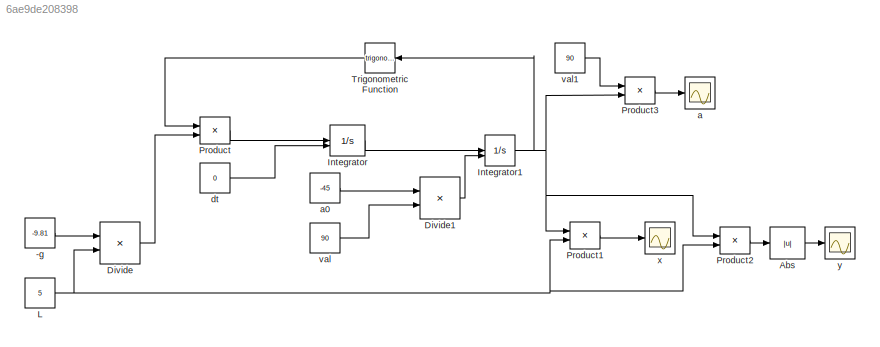
MODEL slx_6ae9de208398
KIND model
CONFIG AbsTol = auto
CONFIG EnableMultiTasking = off
CONFIG FixedStep = auto
CONFIG MaxStep = 0.001
CONFIG MinStep = auto
CONFIG RelTol = 1e-3
CONFIG SampleTimeConstraint = Unconstrained
CONFIG SolverName = VariableStepAuto
CONFIG StartTime = 0.0
CONFIG StopTime = 10.0
BLOCK [Constant] -g
  Value = -9.81
BLOCK [Abs] Abs
  SaturateOnIntegerOverflow = off
BLOCK [Product] Divide
  Inputs = */
BLOCK [Product] Divide1
  Inputs = */
BLOCK [Integrator] Integrator
  InitialConditionSource = external
BLOCK [Integrator] Integrator1
  InitialConditionSource = external
BLOCK [Constant] L
  Value = 5
BLOCK [Product] Product
BLOCK [Product] Product1
BLOCK [Product] Product2
BLOCK [Product] Product3
BLOCK [Trigonometry] Trigonometric Function
BLOCK [Scope] a
  Floating = off
  NumInputPorts = 1
  ScopeSpecificationString = Simulink.scopes.TimeScopeBlockCfg('CurrentConfiguration', extmgr.ConfigurationSet(extmgr.Configuration('Core','General UI',true),extmgr.Configuration('Core','Source UI',true),extmgr.Configuration('Sources','WiredSimulink',true,'DataLoggingVariableName','ScopeData1'),extmgr.Configuration('Visuals','Time Domain',true,'SerializedDisplays',{struct('MinYLimReal','-91','MaxYLimReal','91','YLabelReal',''...<+1413ch>
BLOCK [Constant] a0
  Value = -45
BLOCK [Constant] dt
  Value = 0
BLOCK [Constant] val
  Value = 90
BLOCK [Constant] val1
  Value = 90
BLOCK [Scope] x
  Floating = off
  NumInputPorts = 1
  ScopeSpecificationString = Simulink.scopes.TimeScopeBlockCfg('CurrentConfiguration', extmgr.ConfigurationSet(extmgr.Configuration('Core','General UI',true),extmgr.Configuration('Core','Source UI',true),extmgr.Configuration('Sources','WiredSimulink',true),extmgr.Configuration('Visuals','Time Domain',true,'SerializedDisplays',{struct('MinYLimReal','-2.90518','MaxYLimReal','7.2084','YLabelReal','','MinYLimMag','0.00000','MaxYL...<+1415ch>
BLOCK [Scope] y
  Floating = off
  NumInputPorts = 1
  ScopeSpecificationString = Simulink.scopes.TimeScopeBlockCfg('CurrentConfiguration', extmgr.ConfigurationSet(extmgr.Configuration('Core','General UI',true),extmgr.Configuration('Core','Source UI',true),extmgr.Configuration('Sources','WiredSimulink',true,'DataLoggingVariableName','ScopeData2'),extmgr.Configuration('Visuals','Time Domain',true,'SerializedDisplays',{struct('MinYLimReal','-2','MaxYLimReal','8','YLabelReal','','...<+1480ch>
LINE -g:1 -> Divide:1
LINE Abs:1 -> y:1
LINE Divide1:1 -> Integrator1:2
LINE Divide:1 -> Product:2
NET Integrator1:1 -> Product1:1, Product2:1, Product3:2, Trigonometric Function:1
LINE Integrator:1 -> Integrator1:1
NET L:1 -> Divide:2, Product1:2, Product2:2
LINE Product1:1 -> x:1
LINE Product2:1 -> Abs:1
LINE Product3:1 -> a:1
LINE Product:1 -> Integrator:1
LINE Trigonometric Function:1 -> Product:1
LINE a0:1 -> Divide1:1
LINE dt:1 -> Integrator:2
LINE val1:1 -> Product3:1
LINE val:1 -> Divide1:2
note: NET lines group one-source signal fan-out (src -> all destinations, sorted); 1:1 wires keep LINE
